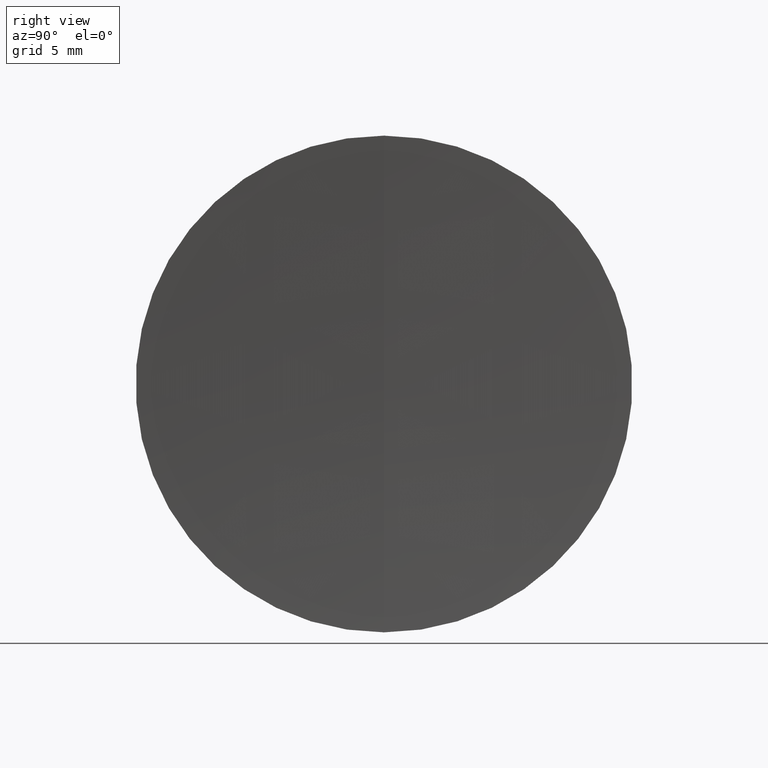
[diagram: clean part render]
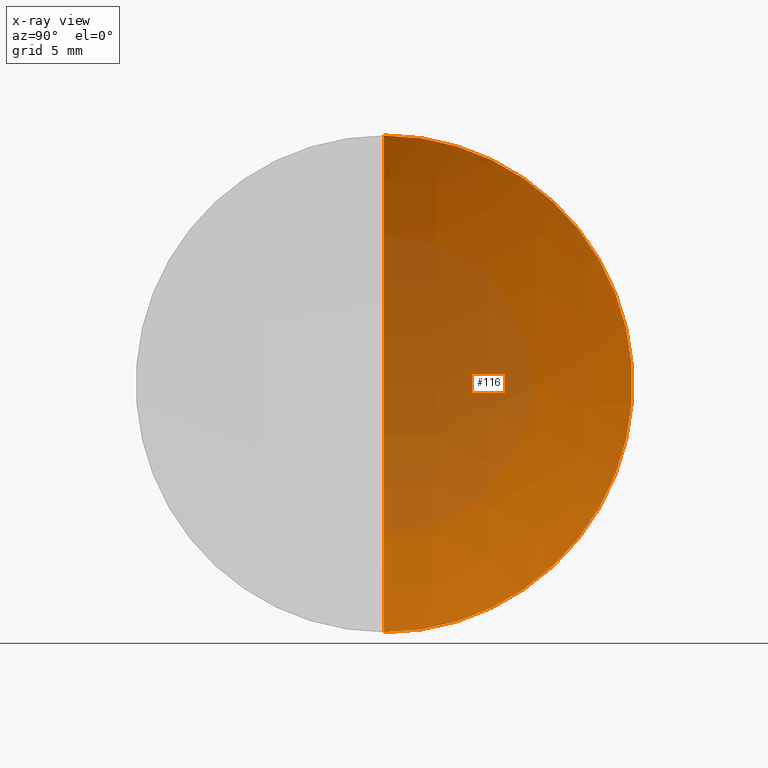
[diagram: x-ray — body ghosted, one internal face saturated and labeled with its STEP entity id]
A machine part, right view, then the same camera in x-ray: the body is ghosted and one INTERNAL B-rep face — a face not visible from any outside direction — is saturated and labeled: STEP entity #116.
In plain terms, the highlighted spherical surface has radius 27.1 mm.
Its self-contained STEP definition (entity closure, byte-faithful):
#36 = CIRCLE ( 'NONE', #132, 27.10000000000000500 ) ;
#55 = ORIENTED_EDGE ( 'NONE', *, *, #147, .F. ) ;
#83 = DIRECTION ( 'NONE',  ( 0.0000000000000000000, 1.224646799147353500E-016, -1.000000000000000000 ) ) ;
#101 = ORIENTED_EDGE ( 'NONE', *, *, #281, .T. ) ;
#107 = ORIENTED_EDGE ( 'NONE', *, *, #298, .F. ) ;
#109 = DIRECTION ( 'NONE',  ( -0.0000000000000000000, 1.000000000000000000, 0.0000000000000000000 ) ) ;
#113 = AXIS2_PLACEMENT_3D ( 'NONE', #254, #275, #83 ) ;
#116 = ADVANCED_FACE ( 'NONE', ( #203 ), #282, .F. ) ;
#120 = VERTEX_POINT ( 'NONE', #166 ) ;
#122 = AXIS2_PLACEMENT_3D ( 'NONE', #225, #330, #277 ) ;
#132 = AXIS2_PLACEMENT_3D ( 'NONE', #303, #109, #273 ) ;
#140 = AXIS2_PLACEMENT_3D ( 'NONE', #175, #179, #255 ) ;
#147 = EDGE_CURVE ( 'NONE', #120, #247, #347, .T. ) ;
#166 = CARTESIAN_POINT ( 'NONE',  ( 265.4434669434605200, 0.0000000000000000000, 12.69999999999999900 ) ) ;
#169 = EDGE_LOOP ( 'NONE', ( #55, #101, #107 ) ) ;
#175 = CARTESIAN_POINT ( 'NONE',  ( 265.4434669434605200, 0.0000000000000000000, -4.891108201182477700E-014 ) ) ;
#179 = DIRECTION ( 'NONE',  ( -1.000000000000000000, -0.0000000000000000000, 1.836970198721029700E-016 ) ) ;
#181 = CARTESIAN_POINT ( 'NONE',  ( 265.4434669434605200, 1.555301434917144500E-015, -12.70000000000009700 ) ) ;
#203 = FACE_OUTER_BOUND ( 'NONE', #169, .T. ) ;
#223 = CARTESIAN_POINT ( 'NONE',  ( 262.2833917553725200, 0.0000000000000000000, 3.318792048203760200E-015 ) ) ;
#225 = CARTESIAN_POINT ( 'NONE',  ( 289.3833917553725400, 0.0000000000000000000, -7.774855670941042100E-022 ) ) ;
#247 = VERTEX_POINT ( 'NONE', #181 ) ;
#254 = CARTESIAN_POINT ( 'NONE',  ( 289.3833917553725400, 0.0000000000000000000, -7.774855670941042100E-022 ) ) ;
#255 = DIRECTION ( 'NONE',  ( 0.0000000000000000000, 0.0000000000000000000, 1.000000000000000000 ) ) ;
#273 = DIRECTION ( 'NONE',  ( 0.0000000000000000000, 0.0000000000000000000, 1.000000000000000000 ) ) ;
#275 = DIRECTION ( 'NONE',  ( -2.249639673992786400E-032, -1.000000000000000000, -1.224646799147353200E-016 ) ) ;
#277 = DIRECTION ( 'NONE',  ( 0.0000000000000000000, 0.0000000000000000000, -1.000000000000000000 ) ) ;
#281 = EDGE_CURVE ( 'NONE', #120, #301, #332, .T. ) ;
#282 = SPHERICAL_SURFACE ( 'NONE', #122, 27.10000000000000500 ) ;
#298 = EDGE_CURVE ( 'NONE', #247, #301, #36, .T. ) ;
#301 = VERTEX_POINT ( 'NONE', #223 ) ;
#303 = CARTESIAN_POINT ( 'NONE',  ( 289.3833917553725400, 0.0000000000000000000, -7.774855670941042100E-022 ) ) ;
#330 = DIRECTION ( 'NONE',  ( -0.0000000000000000000, -1.000000000000000000, -0.0000000000000000000 ) ) ;
#332 = CIRCLE ( 'NONE', #113, 27.10000000000000500 ) ;
#347 = CIRCLE ( 'NONE', #140, 12.70000000000004700 ) ;